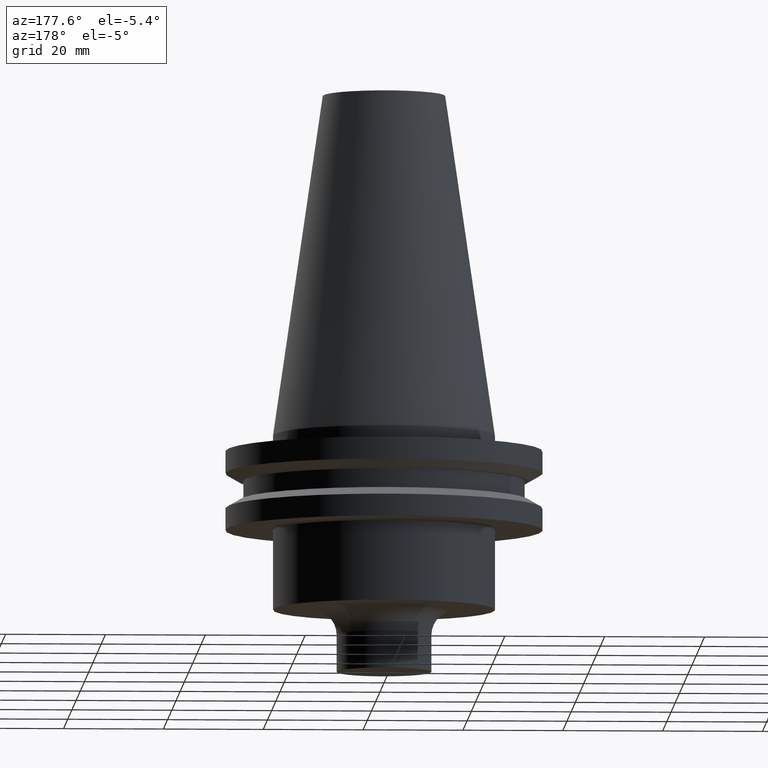
[diagram: clean part render]
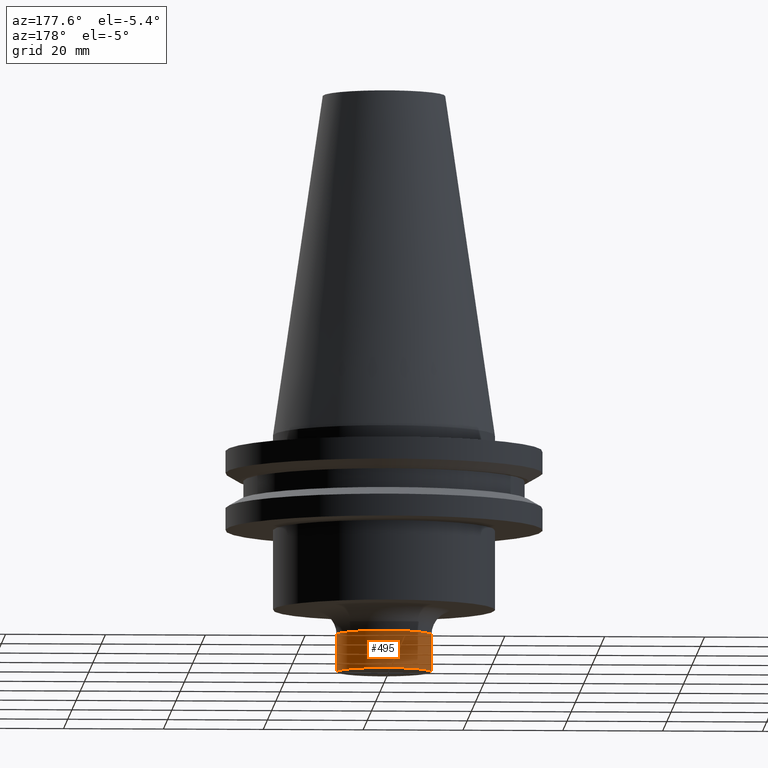
[diagram: same view with one face highlighted and labeled with its STEP entity id]
A machine part, auxiliary view. The second image highlights one B-rep face of the part: STEP entity #495.
In plain terms, the highlighted cylindrical surface (partial cylindrical patch) has radius 9.5 mm, axis along (-0, -0, 1).
Its self-contained STEP definition (entity closure, byte-faithful):
#20 = AXIS2_PLACEMENT_3D ( 'NONE', #275, #287, #775 ) ;
#30 = EDGE_CURVE ( 'NONE', #103, #587, #297, .T. ) ;
#37 = VECTOR ( 'NONE', #505, 1000.000000000000000 ) ;
#43 = CARTESIAN_POINT ( 'NONE',  ( 0.000000000000000000, 0.000000000000000000, -40.04999999999999716 ) ) ;
#103 = VERTEX_POINT ( 'NONE', #288 ) ;
#133 = LINE ( 'NONE', #681, #37 ) ;
#139 = DIRECTION ( 'NONE',  ( 1.000000000000000000, 0.000000000000000000, 0.000000000000000000 ) ) ;
#143 = ORIENTED_EDGE ( 'NONE', *, *, #475, .F. ) ;
#157 = VERTEX_POINT ( 'NONE', #431 ) ;
#182 = EDGE_CURVE ( 'NONE', #103, #157, #133, .T. ) ;
#194 = AXIS2_PLACEMENT_3D ( 'NONE', #446, #754, #139 ) ;
#262 = EDGE_LOOP ( 'NONE', ( #365, #412, #143, #308 ) ) ;
#275 = CARTESIAN_POINT ( 'NONE',  ( 0.000000000000000000, 0.000000000000000000, -47.50000000000000000 ) ) ;
#287 = DIRECTION ( 'NONE',  ( -0.000000000000000000, -0.000000000000000000, 1.000000000000000000 ) ) ;
#288 = CARTESIAN_POINT ( 'NONE',  ( 9.499999999999998224, 0.000000000000000000, -47.50000000000000000 ) ) ;
#297 = CIRCLE ( 'NONE', #20, 9.499999999999998224 ) ;
#301 = CARTESIAN_POINT ( 'NONE',  ( -9.499999999999998224, 1.163414459189985288E-15, -47.50000000000000000 ) ) ;
#308 = ORIENTED_EDGE ( 'NONE', *, *, #182, .F. ) ;
#365 = ORIENTED_EDGE ( 'NONE', *, *, #30, .T. ) ;
#372 = EDGE_CURVE ( 'NONE', #587, #639, #527, .T. ) ;
#373 = VECTOR ( 'NONE', #644, 1000.000000000000000 ) ;
#384 = CYLINDRICAL_SURFACE ( 'NONE', #194, 9.499999999999998224 ) ;
#412 = ORIENTED_EDGE ( 'NONE', *, *, #372, .T. ) ;
#429 = CIRCLE ( 'NONE', #738, 9.499999999999998224 ) ;
#431 = CARTESIAN_POINT ( 'NONE',  ( 9.499999999999998224, 0.000000000000000000, -40.04999999999999716 ) ) ;
#446 = CARTESIAN_POINT ( 'NONE',  ( 0.000000000000000000, 0.000000000000000000, 0.000000000000000000 ) ) ;
#467 = CARTESIAN_POINT ( 'NONE',  ( -9.499999999999998224, 1.163414459189985288E-15, 0.000000000000000000 ) ) ;
#475 = EDGE_CURVE ( 'NONE', #157, #639, #429, .T. ) ;
#495 = ADVANCED_FACE ( 'NONE', ( #675 ), #384, .T. ) ;
#505 = DIRECTION ( 'NONE',  ( -0.000000000000000000, -0.000000000000000000, 1.000000000000000000 ) ) ;
#527 = LINE ( 'NONE', #467, #373 ) ;
#587 = VERTEX_POINT ( 'NONE', #301 ) ;
#639 = VERTEX_POINT ( 'NONE', #759 ) ;
#644 = DIRECTION ( 'NONE',  ( -0.000000000000000000, -0.000000000000000000, 1.000000000000000000 ) ) ;
#675 = FACE_OUTER_BOUND ( 'NONE', #262, .T. ) ;
#681 = CARTESIAN_POINT ( 'NONE',  ( 9.499999999999998224, 0.000000000000000000, 0.000000000000000000 ) ) ;
#700 = DIRECTION ( 'NONE',  ( 1.000000000000000000, 0.000000000000000000, 0.000000000000000000 ) ) ;
#738 = AXIS2_PLACEMENT_3D ( 'NONE', #43, #761, #700 ) ;
#754 = DIRECTION ( 'NONE',  ( -0.000000000000000000, -0.000000000000000000, 1.000000000000000000 ) ) ;
#759 = CARTESIAN_POINT ( 'NONE',  ( -9.499999999999998224, 1.163414459189985288E-15, -40.04999999999999716 ) ) ;
#761 = DIRECTION ( 'NONE',  ( -0.000000000000000000, -0.000000000000000000, 1.000000000000000000 ) ) ;
#775 = DIRECTION ( 'NONE',  ( 1.000000000000000000, 0.000000000000000000, 0.000000000000000000 ) ) ;